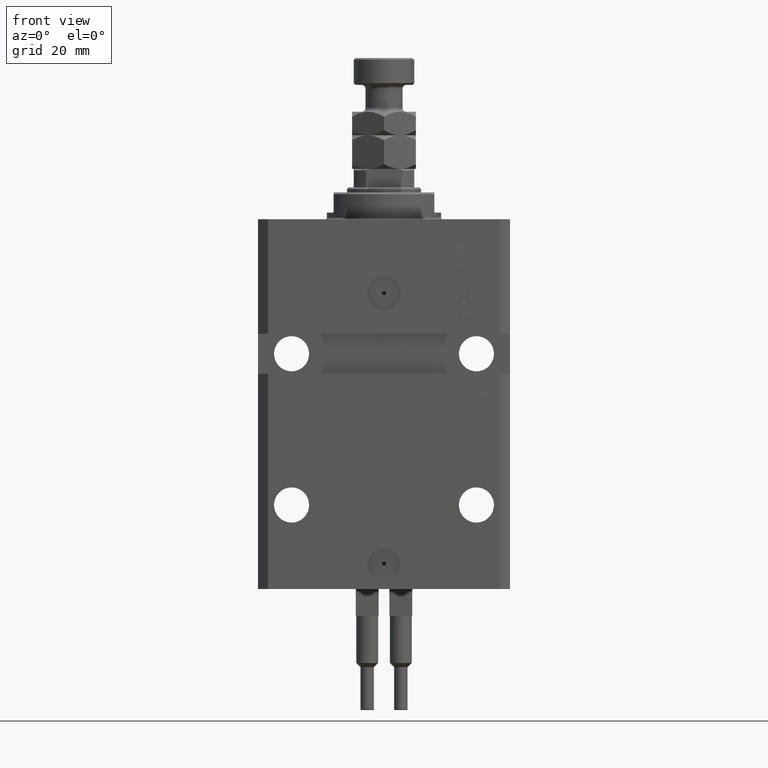
[diagram: clean part render]
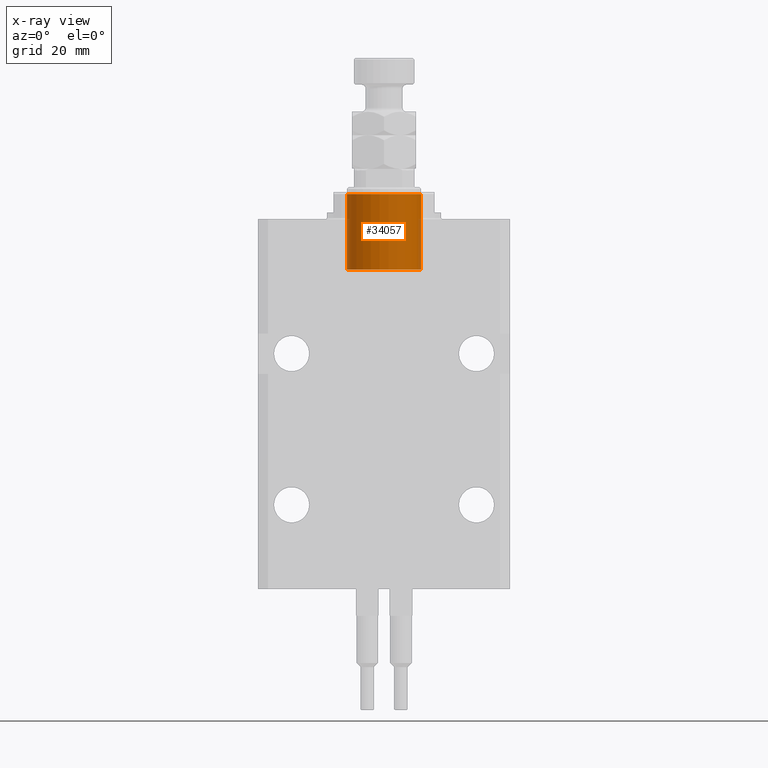
[diagram: x-ray — body ghosted, one internal face saturated and labeled with its STEP entity id]
A machine part, front view, then the same camera in x-ray: the body is ghosted and one INTERNAL B-rep face — a face not visible from any outside direction — is saturated and labeled: STEP entity #34057.
In plain terms, the highlighted cylindrical surface (partial cylindrical patch) has radius 11 mm, axis along (0, -0, 1).
Its self-contained STEP definition (entity closure, byte-faithful):
#2754 = LINE ( 'NONE', #10647, #41825 ) ;
#4416 = DIRECTION ( 'NONE',  ( -1.000000000000000000, 0.000000000000000000, 0.000000000000000000 ) ) ;
#4470 = CYLINDRICAL_SURFACE ( 'NONE', #27255, 11.00000000000000000 ) ;
#6085 = VERTEX_POINT ( 'NONE', #9428 ) ;
#6550 = EDGE_CURVE ( 'NONE', #6085, #16027, #33286, .T. ) ;
#8695 = ORIENTED_EDGE ( 'NONE', *, *, #47810, .T. ) ;
#9428 = CARTESIAN_POINT ( 'NONE',  ( -11.00000000000000000, 0.000000000000000000, 15.00000000000000000 ) ) ;
#10647 = CARTESIAN_POINT ( 'NONE',  ( 11.00000000000000000, 1.347111479062088405E-15, 15.00000000000000000 ) ) ;
#10657 = DIRECTION ( 'NONE',  ( -1.000000000000000000, 0.000000000000000000, 0.000000000000000000 ) ) ;
#12797 = CARTESIAN_POINT ( 'NONE',  ( -11.00000000000000000, 0.000000000000000000, -7.500000000000000000 ) ) ;
#16027 = VERTEX_POINT ( 'NONE', #12797 ) ;
#17120 = CARTESIAN_POINT ( 'NONE',  ( 0.000000000000000000, 0.000000000000000000, 15.00000000000000000 ) ) ;
#17785 = CIRCLE ( 'NONE', #31613, 11.00000000000000000 ) ;
#18053 = ORIENTED_EDGE ( 'NONE', *, *, #49247, .F. ) ;
#18289 = DIRECTION ( 'NONE',  ( -0.000000000000000000, -0.000000000000000000, -1.000000000000000000 ) ) ;
#19983 = FACE_OUTER_BOUND ( 'NONE', #22392, .T. ) ;
#22084 = ORIENTED_EDGE ( 'NONE', *, *, #32435, .T. ) ;
#22392 = EDGE_LOOP ( 'NONE', ( #18053, #22084, #8695, #45970 ) ) ;
#22598 = AXIS2_PLACEMENT_3D ( 'NONE', #24995, #47917, #10657 ) ;
#24067 = CARTESIAN_POINT ( 'NONE',  ( 0.000000000000000000, 0.000000000000000000, 15.00000000000000000 ) ) ;
#24995 = CARTESIAN_POINT ( 'NONE',  ( 0.000000000000000000, 0.000000000000000000, -7.500000000000000000 ) ) ;
#25653 = CARTESIAN_POINT ( 'NONE',  ( -11.00000000000000000, 0.000000000000000000, 15.00000000000000000 ) ) ;
#25875 = CIRCLE ( 'NONE', #22598, 11.00000000000000000 ) ;
#27255 = AXIS2_PLACEMENT_3D ( 'NONE', #24067, #43163, #28134 ) ;
#28134 = DIRECTION ( 'NONE',  ( -1.000000000000000000, 0.000000000000000000, 0.000000000000000000 ) ) ;
#31426 = VERTEX_POINT ( 'NONE', #43199 ) ;
#31613 = AXIS2_PLACEMENT_3D ( 'NONE', #17120, #35708, #4416 ) ;
#32435 = EDGE_CURVE ( 'NONE', #31426, #33990, #2754, .T. ) ;
#33286 = LINE ( 'NONE', #25653, #41268 ) ;
#33990 = VERTEX_POINT ( 'NONE', #42412 ) ;
#34057 = ADVANCED_FACE ( 'NONE', ( #19983 ), #4470, .F. ) ;
#35708 = DIRECTION ( 'NONE',  ( 0.000000000000000000, 0.000000000000000000, -1.000000000000000000 ) ) ;
#41268 = VECTOR ( 'NONE', #48838, 1000.000000000000000 ) ;
#41825 = VECTOR ( 'NONE', #18289, 1000.000000000000000 ) ;
#42412 = CARTESIAN_POINT ( 'NONE',  ( 11.00000000000000000, 1.347111479062088405E-15, -7.500000000000000000 ) ) ;
#43163 = DIRECTION ( 'NONE',  ( -0.000000000000000000, -0.000000000000000000, -1.000000000000000000 ) ) ;
#43199 = CARTESIAN_POINT ( 'NONE',  ( 11.00000000000000000, 1.347111479062088405E-15, 15.00000000000000000 ) ) ;
#45970 = ORIENTED_EDGE ( 'NONE', *, *, #6550, .F. ) ;
#47810 = EDGE_CURVE ( 'NONE', #33990, #16027, #25875, .T. ) ;
#47917 = DIRECTION ( 'NONE',  ( 0.000000000000000000, 0.000000000000000000, -1.000000000000000000 ) ) ;
#48838 = DIRECTION ( 'NONE',  ( -0.000000000000000000, -0.000000000000000000, -1.000000000000000000 ) ) ;
#49247 = EDGE_CURVE ( 'NONE', #31426, #6085, #17785, .T. ) ;